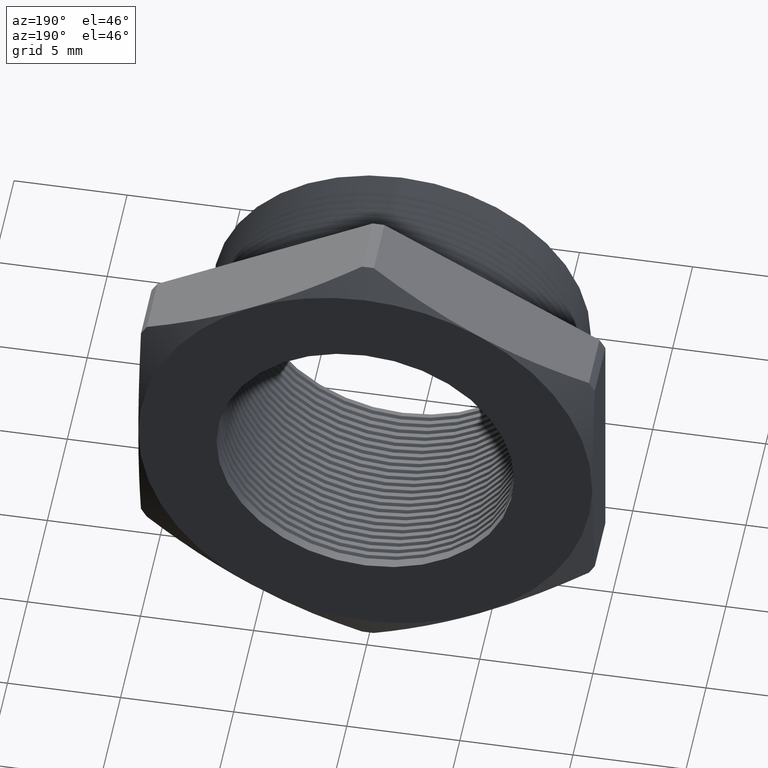
[diagram: clean part render]
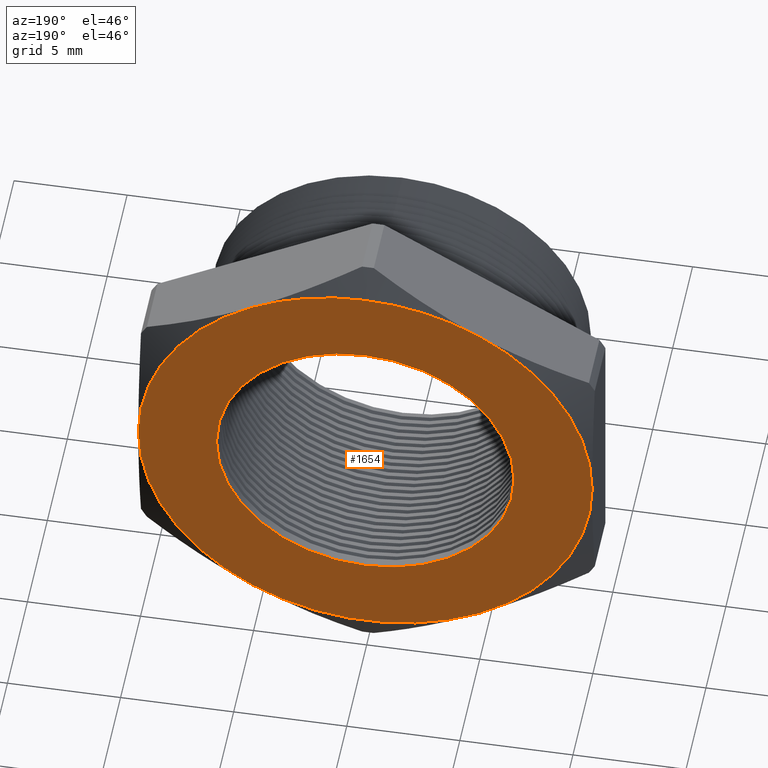
[diagram: same view with one face highlighted and labeled with its STEP entity id]
A machine part, auxiliary view. The second image highlights one B-rep face of the part: STEP entity #1654.
In plain terms, the highlighted planar face has unit normal (0, 1, 0).
Its self-contained STEP definition (entity closure, byte-faithful):
#102 = ORIENTED_EDGE ( 'NONE', *, *, #1651, .T. ) ;
#103 = ORIENTED_EDGE ( 'NONE', *, *, #2629, .T. ) ;
#104 = VERTEX_POINT ( 'NONE', #2098 ) ;
#1394 = ORIENTED_EDGE ( 'NONE', *, *, #1596, .T. ) ;
#1418 = EDGE_LOOP ( 'NONE', ( #1684, #103 ) ) ;
#1420 = VERTEX_POINT ( 'NONE', #4591 ) ;
#1433 = ORIENTED_EDGE ( 'NONE', *, *, #1537, .T. ) ;
#1441 = EDGE_CURVE ( 'NONE', #1658, #1558, #4619, .T. ) ;
#1537 = EDGE_CURVE ( 'NONE', #1653, #1420, #4794, .T. ) ;
#1550 = EDGE_CURVE ( 'NONE', #2627, #2625, #4832, .T. ) ;
#1558 = VERTEX_POINT ( 'NONE', #4868 ) ;
#1596 = EDGE_CURVE ( 'NONE', #1420, #1658, #4933, .T. ) ;
#1651 = EDGE_CURVE ( 'NONE', #1652, #1653, #5006, .T. ) ;
#1652 = VERTEX_POINT ( 'NONE', #5058 ) ;
#1653 = VERTEX_POINT ( 'NONE', #5057 ) ;
#1654 = ADVANCED_FACE ( 'NONE', ( #5056, #5055 ), #5054, .T. ) ;
#1658 = VERTEX_POINT ( 'NONE', #5044 ) ;
#1684 = ORIENTED_EDGE ( 'NONE', *, *, #1550, .T. ) ;
#1698 = ORIENTED_EDGE ( 'NONE', *, *, #1441, .T. ) ;
#1738 = EDGE_CURVE ( 'NONE', #104, #1652, #5205, .T. ) ;
#1854 = EDGE_LOOP ( 'NONE', ( #1933, #102, #1433, #1394, #1698, #2003, #1999 ) ) ;
#1933 = ORIENTED_EDGE ( 'NONE', *, *, #1738, .T. ) ;
#1994 = EDGE_CURVE ( 'NONE', #2030, #104, #5456, .T. ) ;
#1999 = ORIENTED_EDGE ( 'NONE', *, *, #1994, .T. ) ;
#2003 = ORIENTED_EDGE ( 'NONE', *, *, #2225, .T. ) ;
#2030 = VERTEX_POINT ( 'NONE', #5451 ) ;
#2098 = CARTESIAN_POINT ( 'NONE',  ( -0.1975000000000000100, 0.4075548905829479200, 0.3420800344948533600 ) ) ;
#2225 = EDGE_CURVE ( 'NONE', #1558, #2030, #5486, .T. ) ;
#2625 = VERTEX_POINT ( 'NONE', #5753 ) ;
#2627 = VERTEX_POINT ( 'NONE', #5752 ) ;
#2629 = EDGE_CURVE ( 'NONE', #2625, #2627, #5814, .T. ) ;
#4591 = CARTESIAN_POINT ( 'NONE',  ( 0.3949999999999999600, 0.4075548905829479200, 1.182924880895400300E-016 ) ) ;
#4615 = DIRECTION ( 'NONE',  ( 0.0000000000000000000, 0.0000000000000000000, 1.000000000000000000 ) ) ;
#4616 = DIRECTION ( 'NONE',  ( 0.0000000000000000000, 1.000000000000000000, 0.0000000000000000000 ) ) ;
#4617 = CARTESIAN_POINT ( 'NONE',  ( 0.0000000000000000000, 0.4075548905829479200, 0.0000000000000000000 ) ) ;
#4618 = AXIS2_PLACEMENT_3D ( 'NONE', #4617, #4616, #4615 ) ;
#4619 = CIRCLE ( 'NONE', #4618, 0.3949999999999999600 ) ;
#4790 = DIRECTION ( 'NONE',  ( 0.0000000000000000000, 0.0000000000000000000, 1.000000000000000000 ) ) ;
#4791 = DIRECTION ( 'NONE',  ( 0.0000000000000000000, 1.000000000000000000, 0.0000000000000000000 ) ) ;
#4792 = CARTESIAN_POINT ( 'NONE',  ( 0.0000000000000000000, 0.4075548905829479200, 0.0000000000000000000 ) ) ;
#4793 = AXIS2_PLACEMENT_3D ( 'NONE', #4792, #4791, #4790 ) ;
#4794 = CIRCLE ( 'NONE', #4793, 0.3949999999999999600 ) ;
#4823 = DIRECTION ( 'NONE',  ( 0.0000000000000000000, 0.0000000000000000000, -1.000000000000000000 ) ) ;
#4824 = DIRECTION ( 'NONE',  ( -0.0000000000000000000, -1.000000000000000000, -0.0000000000000000000 ) ) ;
#4825 = CARTESIAN_POINT ( 'NONE',  ( 0.0000000000000000000, 0.4075548905829479200, 0.0000000000000000000 ) ) ;
#4826 = AXIS2_PLACEMENT_3D ( 'NONE', #4825, #4824, #4823 ) ;
#4832 = CIRCLE ( 'NONE', #4826, 0.2589880461203001900 ) ;
#4868 = CARTESIAN_POINT ( 'NONE',  ( -0.1975000000000000900, 0.4075548905829479200, -0.3420800344948533000 ) ) ;
#4929 = DIRECTION ( 'NONE',  ( 0.0000000000000000000, 0.0000000000000000000, 1.000000000000000000 ) ) ;
#4930 = DIRECTION ( 'NONE',  ( 0.0000000000000000000, 1.000000000000000000, 0.0000000000000000000 ) ) ;
#4931 = CARTESIAN_POINT ( 'NONE',  ( 0.0000000000000000000, 0.4075548905829479200, 0.0000000000000000000 ) ) ;
#4932 = AXIS2_PLACEMENT_3D ( 'NONE', #4931, #4930, #4929 ) ;
#4933 = CIRCLE ( 'NONE', #4932, 0.3949999999999999600 ) ;
#5000 = CARTESIAN_POINT ( 'NONE',  ( 0.0000000000000000000, 0.4075548905829479200, 0.0000000000000000000 ) ) ;
#5001 = AXIS2_PLACEMENT_3D ( 'NONE', #5000, #5060, #5059 ) ;
#5006 = CIRCLE ( 'NONE', #5001, 0.3949999999999999600 ) ;
#5044 = CARTESIAN_POINT ( 'NONE',  ( 0.1975000000000000100, 0.4075548905829479200, -0.3420800344948534100 ) ) ;
#5049 = DIRECTION ( 'NONE',  ( 0.0000000000000000000, -0.0000000000000000000, 1.000000000000000000 ) ) ;
#5050 = DIRECTION ( 'NONE',  ( 0.0000000000000000000, 1.000000000000000000, 0.0000000000000000000 ) ) ;
#5051 = AXIS2_PLACEMENT_3D ( 'NONE', #5053, #5050, #5049 ) ;
#5053 = CARTESIAN_POINT ( 'NONE',  ( 0.4502999999999999800, 0.4075548905829479200, 0.0000000000000000000 ) ) ;
#5054 = PLANE ( 'NONE',  #5051 ) ;
#5055 = FACE_OUTER_BOUND ( 'NONE', #1854, .T. ) ;
#5056 = FACE_BOUND ( 'NONE', #1418, .T. ) ;
#5057 = CARTESIAN_POINT ( 'NONE',  ( 0.1975000000000001800, 0.4075548905829479700, 0.3420800344948533000 ) ) ;
#5058 = CARTESIAN_POINT ( 'NONE',  ( 0.0000000000000000000, 0.4075548905829479200, 0.3949999999999999600 ) ) ;
#5059 = DIRECTION ( 'NONE',  ( 0.0000000000000000000, 0.0000000000000000000, 1.000000000000000000 ) ) ;
#5060 = DIRECTION ( 'NONE',  ( 0.0000000000000000000, 1.000000000000000000, 0.0000000000000000000 ) ) ;
#5197 = DIRECTION ( 'NONE',  ( 0.0000000000000000000, 0.0000000000000000000, 1.000000000000000000 ) ) ;
#5198 = DIRECTION ( 'NONE',  ( 0.0000000000000000000, 1.000000000000000000, 0.0000000000000000000 ) ) ;
#5199 = CARTESIAN_POINT ( 'NONE',  ( 0.0000000000000000000, 0.4075548905829479200, 0.0000000000000000000 ) ) ;
#5200 = AXIS2_PLACEMENT_3D ( 'NONE', #5199, #5198, #5197 ) ;
#5205 = CIRCLE ( 'NONE', #5200, 0.3949999999999999600 ) ;
#5451 = CARTESIAN_POINT ( 'NONE',  ( -0.3949999999999999600, 0.4075548905829479200, 0.0000000000000000000 ) ) ;
#5452 = DIRECTION ( 'NONE',  ( 0.0000000000000000000, 0.0000000000000000000, 1.000000000000000000 ) ) ;
#5453 = DIRECTION ( 'NONE',  ( 0.0000000000000000000, 1.000000000000000000, 0.0000000000000000000 ) ) ;
#5454 = CARTESIAN_POINT ( 'NONE',  ( 0.0000000000000000000, 0.4075548905829479200, 0.0000000000000000000 ) ) ;
#5455 = AXIS2_PLACEMENT_3D ( 'NONE', #5454, #5453, #5452 ) ;
#5456 = CIRCLE ( 'NONE', #5455, 0.3949999999999999600 ) ;
#5482 = DIRECTION ( 'NONE',  ( 0.0000000000000000000, 0.0000000000000000000, 1.000000000000000000 ) ) ;
#5483 = DIRECTION ( 'NONE',  ( 0.0000000000000000000, 1.000000000000000000, 0.0000000000000000000 ) ) ;
#5484 = CARTESIAN_POINT ( 'NONE',  ( 0.0000000000000000000, 0.4075548905829479200, 0.0000000000000000000 ) ) ;
#5485 = AXIS2_PLACEMENT_3D ( 'NONE', #5484, #5483, #5482 ) ;
#5486 = CIRCLE ( 'NONE', #5485, 0.3949999999999999600 ) ;
#5752 = CARTESIAN_POINT ( 'NONE',  ( 0.0000000000000000000, 0.4075548905829479200, -0.2589880461203001900 ) ) ;
#5753 = CARTESIAN_POINT ( 'NONE',  ( 3.171688816986526800E-017, 0.4075548905829479200, 0.2589880461203001900 ) ) ;
#5810 = DIRECTION ( 'NONE',  ( 0.0000000000000000000, 0.0000000000000000000, -1.000000000000000000 ) ) ;
#5811 = DIRECTION ( 'NONE',  ( -0.0000000000000000000, -1.000000000000000000, -0.0000000000000000000 ) ) ;
#5812 = CARTESIAN_POINT ( 'NONE',  ( 0.0000000000000000000, 0.4075548905829479200, 0.0000000000000000000 ) ) ;
#5813 = AXIS2_PLACEMENT_3D ( 'NONE', #5812, #5811, #5810 ) ;
#5814 = CIRCLE ( 'NONE', #5813, 0.2589880461203001900 ) ;